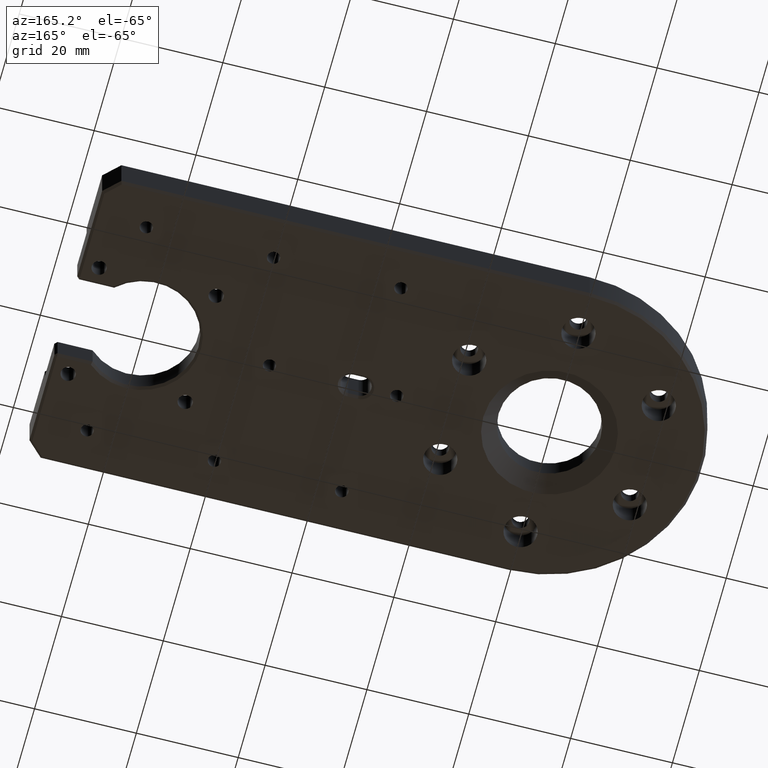
[diagram: clean part render]
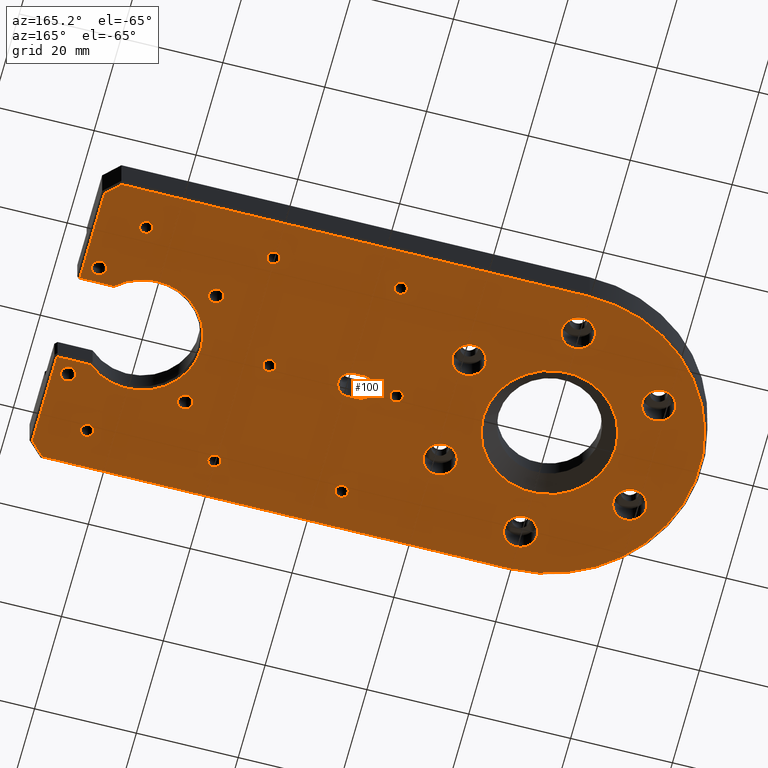
[diagram: same view with one face highlighted and labeled with its STEP entity id]
A machine part, auxiliary view. The second image highlights one B-rep face of the part: STEP entity #100.
In plain terms, the highlighted planar face has unit normal (0, 0, 1).
Its self-contained STEP definition (entity closure, byte-faithful):
#25 = DIRECTION ( 'NONE',  ( -1.000000000000000000, -2.168404344971052255E-16, 0.0000000000000000000 ) ) ;
#27 = CARTESIAN_POINT ( 'NONE',  ( 3.249999999999999556, 21.50000000000000355, -8.000000000000000000 ) ) ;
#43 = VERTEX_POINT ( 'NONE', #1870 ) ;
#48 = DIRECTION ( 'NONE',  ( -0.0000000000000000000, -0.0000000000000000000, -1.000000000000000000 ) ) ;
#74 = CARTESIAN_POINT ( 'NONE',  ( 91.50000000000000000, -11.50000000000000000, -8.000000000000000000 ) ) ;
#87 = AXIS2_PLACEMENT_3D ( 'NONE', #128, #3546, #3948 ) ;
#89 = CARTESIAN_POINT ( 'NONE',  ( 87.82000639385928764, 8.500000000000000000, -8.000000000000000000 ) ) ;
#100 = ADVANCED_FACE ( 'NONE', ( #2591, #3946, #1197, #3926, #2616, #1944, #529, #2265, #1917, #3628, #1894, #3239, #882, #2246, #3607, #550, #3991, #3282, #239, #3262, #4032 ), #970, .F. ) ;
#122 = AXIS2_PLACEMENT_3D ( 'NONE', #3997, #3589, #2952 ) ;
#125 = CARTESIAN_POINT ( 'NONE',  ( 38.99999999999998579, 3.673940397441985912E-16, -8.000000000000000000 ) ) ;
#126 = CARTESIAN_POINT ( 'NONE',  ( 68.50000000000000000, -11.50000000000000000, -8.000000000000000000 ) ) ;
#128 = CARTESIAN_POINT ( 'NONE',  ( 85.00000000000000000, -22.00000000000000000, -8.000000000000000000 ) ) ;
#130 = EDGE_LOOP ( 'NONE', ( #1636, #1069 ) ) ;
#131 = EDGE_CURVE ( 'NONE', #207, #2843, #2839, .T. ) ;
#137 = CIRCLE ( 'NONE', #2270, 1.449999999999993072 ) ;
#140 = DIRECTION ( 'NONE',  ( 1.000000000000000000, 0.0000000000000000000, 0.0000000000000000000 ) ) ;
#157 = CIRCLE ( 'NONE', #1353, 1.250000000000001110 ) ;
#169 = VERTEX_POINT ( 'NONE', #2705 ) ;
#177 = CARTESIAN_POINT ( 'NONE',  ( 85.00000000000000000, 22.00000000000000000, -8.000000000000000000 ) ) ;
#185 = EDGE_CURVE ( 'NONE', #3478, #2140, #2556, .T. ) ;
#187 = EDGE_LOOP ( 'NONE', ( #2347, #3830 ) ) ;
#190 = DIRECTION ( 'NONE',  ( 0.0000000000000000000, 0.0000000000000000000, 1.000000000000000000 ) ) ;
#191 = EDGE_CURVE ( 'NONE', #3411, #4268, #1638, .T. ) ;
#195 = ORIENTED_EDGE ( 'NONE', *, *, #3620, .T. ) ;
#204 = CARTESIAN_POINT ( 'NONE',  ( 28.75000000000000355, 0.0000000000000000000, -8.000000000000000000 ) ) ;
#207 = VERTEX_POINT ( 'NONE', #1306 ) ;
#210 = CIRCLE ( 'NONE', #2697, 3.249999999999999556 ) ;
#212 = CARTESIAN_POINT ( 'NONE',  ( -3.249999999999999556, 21.50000000000000355, -8.000000000000000000 ) ) ;
#224 = AXIS2_PLACEMENT_3D ( 'NONE', #3484, #2214, #140 ) ;
#227 = VERTEX_POINT ( 'NONE', #2939 ) ;
#238 = CIRCLE ( 'NONE', #87, 1.250000000000001110 ) ;
#239 = FACE_BOUND ( 'NONE', #3552, .T. ) ;
#257 = LINE ( 'NONE', #990, #2247 ) ;
#268 = DIRECTION ( 'NONE',  ( -0.0000000000000000000, -0.0000000000000000000, -1.000000000000000000 ) ) ;
#285 = CIRCLE ( 'NONE', #2482, 11.54999999999999005 ) ;
#286 = CIRCLE ( 'NONE', #2070, 1.250000000000001110 ) ;
#290 = DIRECTION ( 'NONE',  ( -1.000000000000000000, 0.0000000000000000000, 0.0000000000000000000 ) ) ;
#292 = CARTESIAN_POINT ( 'NONE',  ( 90.05000000000001137, 11.50000000000000000, -8.000000000000000000 ) ) ;
#313 = ORIENTED_EDGE ( 'NONE', *, *, #2367, .F. ) ;
#314 = CARTESIAN_POINT ( 'NONE',  ( 86.25000000000001421, 22.00000000000000000, -8.000000000000000000 ) ) ;
#326 = ORIENTED_EDGE ( 'NONE', *, *, #724, .F. ) ;
#328 = DIRECTION ( 'NONE',  ( 1.000000000000000000, 0.0000000000000000000, -0.0000000000000000000 ) ) ;
#345 = DIRECTION ( 'NONE',  ( 0.0000000000000000000, 0.0000000000000000000, 1.000000000000000000 ) ) ;
#350 = VERTEX_POINT ( 'NONE', #696 ) ;
#359 = ORIENTED_EDGE ( 'NONE', *, *, #4082, .F. ) ;
#364 = CARTESIAN_POINT ( 'NONE',  ( 35.00000000000000000, -21.99999999999999645, -8.000000000000000000 ) ) ;
#370 = CARTESIAN_POINT ( 'NONE',  ( 0.0000000000000000000, 21.50000000000000355, -8.000000000000000000 ) ) ;
#373 = EDGE_CURVE ( 'NONE', #556, #350, #286, .T. ) ;
#384 = CARTESIAN_POINT ( 'NONE',  ( 1.806354028742345802E-15, 29.50000000000000000, -8.000000000000000000 ) ) ;
#406 = DIRECTION ( 'NONE',  ( -0.0000000000000000000, -0.0000000000000000000, -1.000000000000000000 ) ) ;
#408 = EDGE_CURVE ( 'NONE', #1661, #1336, #2629, .T. ) ;
#420 = VERTEX_POINT ( 'NONE', #384 ) ;
#433 = EDGE_CURVE ( 'NONE', #3470, #1137, #3007, .T. ) ;
#434 = CARTESIAN_POINT ( 'NONE',  ( 83.75000000000000000, -22.00000000000000000, -8.000000000000000000 ) ) ;
#448 = CARTESIAN_POINT ( 'NONE',  ( 33.75000000000000000, -21.99999999999999645, -8.000000000000000000 ) ) ;
#449 = CIRCLE ( 'NONE', #1021, 1.250000000000001110 ) ;
#463 = EDGE_CURVE ( 'NONE', #4130, #2419, #1745, .T. ) ;
#466 = VECTOR ( 'NONE', #2607, 1000.000000000000114 ) ;
#470 = CIRCLE ( 'NONE', #4321, 1.250000000000001110 ) ;
#485 = ORIENTED_EDGE ( 'NONE', *, *, #647, .T. ) ;
#512 = EDGE_CURVE ( 'NONE', #2419, #4130, #2797, .T. ) ;
#517 = EDGE_CURVE ( 'NONE', #4348, #1369, #4247, .T. ) ;
#528 = CARTESIAN_POINT ( 'NONE',  ( 80.00000000000001421, 0.0000000000000000000, -8.000000000000000000 ) ) ;
#529 = FACE_BOUND ( 'NONE', #1828, .T. ) ;
#535 = CIRCLE ( 'NONE', #1241, 1.250000000000001110 ) ;
#550 = FACE_BOUND ( 'NONE', #2137, .T. ) ;
#556 = VERTEX_POINT ( 'NONE', #2149 ) ;
#569 = EDGE_CURVE ( 'NONE', #3647, #2410, #1476, .T. ) ;
#587 = VERTEX_POINT ( 'NONE', #4224 ) ;
#599 = VERTEX_POINT ( 'NONE', #448 ) ;
#603 = CARTESIAN_POINT ( 'NONE',  ( 94.50000000000004263, -26.99999999999996803, -8.000000000000000000 ) ) ;
#608 = AXIS2_PLACEMENT_3D ( 'NONE', #3070, #4063, #1294 ) ;
#612 = CIRCLE ( 'NONE', #3300, 1.250000000000001110 ) ;
#623 = VERTEX_POINT ( 'NONE', #2469 ) ;
#627 = EDGE_CURVE ( 'NONE', #4085, #3063, #4097, .T. ) ;
#634 = DIRECTION ( 'NONE',  ( -1.000000000000000000, 0.0000000000000000000, 0.0000000000000000000 ) ) ;
#640 = DIRECTION ( 'NONE',  ( -1.000000000000000000, 0.0000000000000000000, 0.0000000000000000000 ) ) ;
#641 = CARTESIAN_POINT ( 'NONE',  ( -21.86954618136542905, -10.75000000000001066, -8.000000000000000000 ) ) ;
#647 = EDGE_CURVE ( 'NONE', #849, #1062, #4388, .T. ) ;
#654 = CARTESIAN_POINT ( 'NONE',  ( 69.95000000000000284, 11.50000000000000000, -8.000000000000000000 ) ) ;
#663 = DIRECTION ( 'NONE',  ( 1.000000000000000000, 4.702740439383419307E-16, 0.0000000000000000000 ) ) ;
#664 = DIRECTION ( 'NONE',  ( 0.0000000000000000000, 0.0000000000000000000, 1.000000000000000000 ) ) ;
#674 = VERTEX_POINT ( 'NONE', #4339 ) ;
#684 = DIRECTION ( 'NONE',  ( -1.000000000000000000, 0.0000000000000000000, 0.0000000000000000000 ) ) ;
#688 = DIRECTION ( 'NONE',  ( -0.0000000000000000000, -0.0000000000000000000, -1.000000000000000000 ) ) ;
#696 = CARTESIAN_POINT ( 'NONE',  ( 53.75000000000000711, 0.0000000000000000000, -8.000000000000000000 ) ) ;
#708 = CIRCLE ( 'NONE', #4076, 1.250000000000001110 ) ;
#711 = AXIS2_PLACEMENT_3D ( 'NONE', #1018, #2376, #684 ) ;
#723 = DIRECTION ( 'NONE',  ( 1.000000000000000000, 0.0000000000000000000, 0.0000000000000000000 ) ) ;
#724 = EDGE_CURVE ( 'NONE', #2428, #2464, #2166, .T. ) ;
#727 = EDGE_LOOP ( 'NONE', ( #3244, #734 ) ) ;
#734 = ORIENTED_EDGE ( 'NONE', *, *, #2819, .T. ) ;
#735 = CARTESIAN_POINT ( 'NONE',  ( 86.25000000000001421, -22.00000000000000000, -8.000000000000000000 ) ) ;
#738 = EDGE_LOOP ( 'NONE', ( #326, #4167 ) ) ;
#745 = CIRCLE ( 'NONE', #3534, 3.249999999999999556 ) ;
#776 = EDGE_LOOP ( 'NONE', ( #4020, #1741 ) ) ;
#779 = AXIS2_PLACEMENT_3D ( 'NONE', #125, #2837, #3901 ) ;
#782 = CARTESIAN_POINT ( 'NONE',  ( -5.510910596163088767E-15, -29.50000000000000000, -8.000000000000000000 ) ) ;
#783 = EDGE_LOOP ( 'NONE', ( #3592, #1367 ) ) ;
#785 = DIRECTION ( 'NONE',  ( -0.0000000000000000000, -0.0000000000000000000, -1.000000000000000000 ) ) ;
#788 = LINE ( 'NONE', #3511, #466 ) ;
#792 = CIRCLE ( 'NONE', #3273, 2.500000000000015987 ) ;
#813 = AXIS2_PLACEMENT_3D ( 'NONE', #2296, #1926, #2275 ) ;
#818 = AXIS2_PLACEMENT_3D ( 'NONE', #1692, #1337, #2693 ) ;
#830 = CARTESIAN_POINT ( 'NONE',  ( 94.64644660940676602, 26.64644660940675180, -8.000000000000000000 ) ) ;
#837 = CIRCLE ( 'NONE', #2608, 3.249999999999999556 ) ;
#838 = ORIENTED_EDGE ( 'NONE', *, *, #2654, .F. ) ;
#841 = EDGE_CURVE ( 'NONE', #2410, #587, #2074, .T. ) ;
#849 = VERTEX_POINT ( 'NONE', #1441 ) ;
#879 = DIRECTION ( 'NONE',  ( -0.0000000000000000000, -0.0000000000000000000, -1.000000000000000000 ) ) ;
#882 = FACE_BOUND ( 'NONE', #4212, .T. ) ;
#884 = CARTESIAN_POINT ( 'NONE',  ( -15.36954618136542727, 10.75000000000000178, -8.000000000000000000 ) ) ;
#897 = EDGE_CURVE ( 'NONE', #623, #3337, #3080, .T. ) ;
#918 = CIRCLE ( 'NONE', #4205, 1.250000000000001110 ) ;
#927 = CARTESIAN_POINT ( 'NONE',  ( 3.997329373475927759E-15, -8.500000000000046185, -8.000000000000000000 ) ) ;
#970 = PLANE ( 'NONE',  #1567 ) ;
#979 = ORIENTED_EDGE ( 'NONE', *, *, #373, .F. ) ;
#984 = DIRECTION ( 'NONE',  ( -0.0000000000000000000, -0.0000000000000000000, -1.000000000000000000 ) ) ;
#990 = CARTESIAN_POINT ( 'NONE',  ( 92.00000000000005684, 29.50000000000000000, -8.000000000000000000 ) ) ;
#1018 = CARTESIAN_POINT ( 'NONE',  ( 85.00000000000000000, 22.00000000000000000, -8.000000000000000000 ) ) ;
#1021 = AXIS2_PLACEMENT_3D ( 'NONE', #3769, #1424, #2077 ) ;
#1029 = AXIS2_PLACEMENT_3D ( 'NONE', #2084, #2389, #3752 ) ;
#1030 = AXIS2_PLACEMENT_3D ( 'NONE', #2488, #1406, #2141 ) ;
#1034 = ORIENTED_EDGE ( 'NONE', *, *, #1115, .T. ) ;
#1048 = DIRECTION ( 'NONE',  ( 1.000000000000000000, 0.0000000000000000000, 0.0000000000000000000 ) ) ;
#1058 = EDGE_CURVE ( 'NONE', #2795, #2167, #3214, .T. ) ;
#1059 = CARTESIAN_POINT ( 'NONE',  ( 94.50000000000004263, -26.79289321881342190, -8.000000000000000000 ) ) ;
#1062 = VERTEX_POINT ( 'NONE', #2245 ) ;
#1066 = EDGE_CURVE ( 'NONE', #43, #2602, #285, .T. ) ;
#1069 = ORIENTED_EDGE ( 'NONE', *, *, #3512, .F. ) ;
#1074 = CARTESIAN_POINT ( 'NONE',  ( 55.00000000000000711, 0.0000000000000000000, -8.000000000000000000 ) ) ;
#1100 = DIRECTION ( 'NONE',  ( -0.0000000000000000000, -0.0000000000000000000, -1.000000000000000000 ) ) ;
#1103 = CARTESIAN_POINT ( 'NONE',  ( 68.50000000000000000, 11.50000000000000000, -8.000000000000000000 ) ) ;
#1104 = EDGE_CURVE ( 'NONE', #2167, #3470, #3489, .T. ) ;
#1115 = EDGE_CURVE ( 'NONE', #2602, #1724, #1941, .T. ) ;
#1137 = VERTEX_POINT ( 'NONE', #4398 ) ;
#1162 = DIRECTION ( 'NONE',  ( 0.0000000000000000000, 0.0000000000000000000, 1.000000000000000000 ) ) ;
#1181 = VERTEX_POINT ( 'NONE', #2615 ) ;
#1197 = FACE_BOUND ( 'NONE', #783, .T. ) ;
#1211 = EDGE_CURVE ( 'NONE', #227, #674, #1503, .T. ) ;
#1213 = CARTESIAN_POINT ( 'NONE',  ( 38.99999999999998579, 2.500000000000014655, -8.000000000000000000 ) ) ;
#1222 = DIRECTION ( 'NONE',  ( 0.0000000000000000000, -1.000000000000000000, 0.0000000000000000000 ) ) ;
#1241 = AXIS2_PLACEMENT_3D ( 'NONE', #3376, #3162, #4185 ) ;
#1245 = EDGE_CURVE ( 'NONE', #169, #3420, #2421, .T. ) ;
#1259 = ORIENTED_EDGE ( 'NONE', *, *, #1299, .F. ) ;
#1267 = CARTESIAN_POINT ( 'NONE',  ( 1.734723475976807094E-15, -21.50000000000000355, -8.000000000000000000 ) ) ;
#1272 = ORIENTED_EDGE ( 'NONE', *, *, #517, .T. ) ;
#1281 = DIRECTION ( 'NONE',  ( -0.0000000000000000000, -0.0000000000000000000, -1.000000000000000000 ) ) ;
#1291 = DIRECTION ( 'NONE',  ( -1.000000000000000000, 0.0000000000000000000, 0.0000000000000000000 ) ) ;
#1294 = DIRECTION ( 'NONE',  ( -1.000000000000000000, 0.0000000000000000000, 0.0000000000000000000 ) ) ;
#1299 = EDGE_CURVE ( 'NONE', #4268, #3411, #4055, .T. ) ;
#1302 = EDGE_CURVE ( 'NONE', #1062, #849, #137, .T. ) ;
#1306 = CARTESIAN_POINT ( 'NONE',  ( -3.249999999999997780, -21.50000000000000355, -8.000000000000000000 ) ) ;
#1336 = VERTEX_POINT ( 'NONE', #1348 ) ;
#1337 = DIRECTION ( 'NONE',  ( 0.0000000000000000000, 0.0000000000000000000, 1.000000000000000000 ) ) ;
#1341 = DIRECTION ( 'NONE',  ( -0.0000000000000000000, -0.0000000000000000000, 1.000000000000000000 ) ) ;
#1348 = CARTESIAN_POINT ( 'NONE',  ( 21.86954618136542905, 10.75000000000000000, -8.000000000000000000 ) ) ;
#1353 = AXIS2_PLACEMENT_3D ( 'NONE', #1910, #1281, #3619 ) ;
#1356 = EDGE_CURVE ( 'NONE', #1137, #2849, #2549, .T. ) ;
#1360 = DIRECTION ( 'NONE',  ( -0.0000000000000000000, -0.0000000000000000000, 1.000000000000000000 ) ) ;
#1367 = ORIENTED_EDGE ( 'NONE', *, *, #897, .T. ) ;
#1369 = VERTEX_POINT ( 'NONE', #4101 ) ;
#1387 = AXIS2_PLACEMENT_3D ( 'NONE', #2779, #3822, #2124 ) ;
#1388 = CIRCLE ( 'NONE', #608, 3.249999999999999556 ) ;
#1390 = DIRECTION ( 'NONE',  ( -1.000000000000000000, 0.0000000000000000000, 0.0000000000000000000 ) ) ;
#1397 = DIRECTION ( 'NONE',  ( -0.0000000000000000000, -0.0000000000000000000, -1.000000000000000000 ) ) ;
#1406 = DIRECTION ( 'NONE',  ( -0.0000000000000000000, -0.0000000000000000000, -1.000000000000000000 ) ) ;
#1407 = VERTEX_POINT ( 'NONE', #3917 ) ;
#1424 = DIRECTION ( 'NONE',  ( -0.0000000000000000000, -0.0000000000000000000, -1.000000000000000000 ) ) ;
#1441 = CARTESIAN_POINT ( 'NONE',  ( 92.94999999999998863, -11.50000000000000000, -8.000000000000000000 ) ) ;
#1453 = CARTESIAN_POINT ( 'NONE',  ( 37.00000000000002842, 0.0000000000000000000, -8.000000000000000000 ) ) ;
#1476 = LINE ( 'NONE', #830, #2940 ) ;
#1489 = DIRECTION ( 'NONE',  ( -0.0000000000000000000, -0.0000000000000000000, -1.000000000000000000 ) ) ;
#1498 = AXIS2_PLACEMENT_3D ( 'NONE', #1697, #48, #1390 ) ;
#1503 = CIRCLE ( 'NONE', #4211, 3.249999999999999556 ) ;
#1519 = EDGE_CURVE ( 'NONE', #1336, #1661, #3840, .T. ) ;
#1554 = ORIENTED_EDGE ( 'NONE', *, *, #2331, .T. ) ;
#1567 = AXIS2_PLACEMENT_3D ( 'NONE', #4416, #664, #328 ) ;
#1596 = VECTOR ( 'NONE', #3481, 1000.000000000000000 ) ;
#1600 = EDGE_CURVE ( 'NONE', #1671, #1407, #157, .T. ) ;
#1606 = CARTESIAN_POINT ( 'NONE',  ( 58.75000000000000711, -22.00000000000000000, -8.000000000000000000 ) ) ;
#1617 = VERTEX_POINT ( 'NONE', #212 ) ;
#1636 = ORIENTED_EDGE ( 'NONE', *, *, #1211, .F. ) ;
#1638 = CIRCLE ( 'NONE', #3410, 1.250000000000001110 ) ;
#1639 = VECTOR ( 'NONE', #2571, 1000.000000000000000 ) ;
#1642 = EDGE_LOOP ( 'NONE', ( #3502, #4314, #3929, #4018, #2982 ) ) ;
#1661 = VERTEX_POINT ( 'NONE', #4411 ) ;
#1669 = DIRECTION ( 'NONE',  ( -0.0000000000000000000, -0.0000000000000000000, -1.000000000000000000 ) ) ;
#1671 = VERTEX_POINT ( 'NONE', #3778 ) ;
#1677 = CARTESIAN_POINT ( 'NONE',  ( 91.50000000000000000, 11.50000000000000000, -8.000000000000000000 ) ) ;
#1683 = DIRECTION ( 'NONE',  ( -1.000000000000000000, 0.0000000000000000000, 0.0000000000000000000 ) ) ;
#1692 = CARTESIAN_POINT ( 'NONE',  ( 80.00000000000001421, 0.0000000000000000000, -8.000000000000000000 ) ) ;
#1697 = CARTESIAN_POINT ( 'NONE',  ( 18.61954618136542905, 10.75000000000000000, -8.000000000000000000 ) ) ;
#1702 = AXIS2_PLACEMENT_3D ( 'NONE', #1267, #3702, #3658 ) ;
#1708 = VERTEX_POINT ( 'NONE', #27 ) ;
#1714 = CARTESIAN_POINT ( 'NONE',  ( 68.50000000000000000, -11.50000000000000000, -8.000000000000000000 ) ) ;
#1717 = CARTESIAN_POINT ( 'NONE',  ( -15.36954618136543083, -10.75000000000001066, -8.000000000000000000 ) ) ;
#1719 = DIRECTION ( 'NONE',  ( -0.0000000000000000000, -0.0000000000000000000, -1.000000000000000000 ) ) ;
#1724 = VERTEX_POINT ( 'NONE', #2721 ) ;
#1726 = VECTOR ( 'NONE', #1222, 1000.000000000000000 ) ;
#1727 = DIRECTION ( 'NONE',  ( -0.0000000000000000000, -0.0000000000000000000, -1.000000000000000000 ) ) ;
#1739 = VECTOR ( 'NONE', #2378, 1000.000000000000000 ) ;
#1741 = ORIENTED_EDGE ( 'NONE', *, *, #1519, .F. ) ;
#1745 = CIRCLE ( 'NONE', #4241, 1.449999999999993072 ) ;
#1761 = EDGE_LOOP ( 'NONE', ( #195, #4317 ) ) ;
#1768 = DIRECTION ( 'NONE',  ( -1.000000000000000000, 0.0000000000000000000, 0.0000000000000000000 ) ) ;
#1796 = ORIENTED_EDGE ( 'NONE', *, *, #4050, .T. ) ;
#1797 = VERTEX_POINT ( 'NONE', #4206 ) ;
#1824 = CARTESIAN_POINT ( 'NONE',  ( 5.421010862427679942E-16, -2.500000000000022649, -8.000000000000000000 ) ) ;
#1825 = VERTEX_POINT ( 'NONE', #89 ) ;
#1828 = EDGE_LOOP ( 'NONE', ( #485, #3439 ) ) ;
#1863 = EDGE_CURVE ( 'NONE', #1369, #420, #2152, .T. ) ;
#1870 = CARTESIAN_POINT ( 'NONE',  ( 68.45000000000003126, 0.0000000000000000000, -8.000000000000000000 ) ) ;
#1872 = EDGE_CURVE ( 'NONE', #2849, #2795, #792, .T. ) ;
#1894 = FACE_BOUND ( 'NONE', #3314, .T. ) ;
#1903 = EDGE_CURVE ( 'NONE', #2464, #2428, #918, .T. ) ;
#1910 = CARTESIAN_POINT ( 'NONE',  ( 35.00000000000000000, 21.99999999999999645, -8.000000000000000000 ) ) ;
#1917 = FACE_BOUND ( 'NONE', #2672, .T. ) ;
#1926 = DIRECTION ( 'NONE',  ( -0.0000000000000000000, -0.0000000000000000000, -1.000000000000000000 ) ) ;
#1941 = LINE ( 'NONE', #927, #2282 ) ;
#1944 = FACE_BOUND ( 'NONE', #727, .T. ) ;
#1961 = EDGE_LOOP ( 'NONE', ( #3890, #1259 ) ) ;
#1969 = ORIENTED_EDGE ( 'NONE', *, *, #1600, .F. ) ;
#1971 = AXIS2_PLACEMENT_3D ( 'NONE', #3229, #190, #2278 ) ;
#1981 = CARTESIAN_POINT ( 'NONE',  ( 68.50000000000000000, 11.50000000000000000, -8.000000000000000000 ) ) ;
#1998 = VERTEX_POINT ( 'NONE', #3958 ) ;
#2007 = EDGE_LOOP ( 'NONE', ( #2562, #4094 ) ) ;
#2021 = CIRCLE ( 'NONE', #2372, 1.449999999999993072 ) ;
#2034 = CIRCLE ( 'NONE', #2873, 3.249999999999999556 ) ;
#2049 = CARTESIAN_POINT ( 'NONE',  ( 60.00000000000000711, -22.00000000000000000, -8.000000000000000000 ) ) ;
#2058 = VERTEX_POINT ( 'NONE', #735 ) ;
#2070 = AXIS2_PLACEMENT_3D ( 'NONE', #1074, #984, #3390 ) ;
#2074 = LINE ( 'NONE', #3496, #1739 ) ;
#2077 = DIRECTION ( 'NONE',  ( -1.000000000000000000, 0.0000000000000000000, 0.0000000000000000000 ) ) ;
#2084 = CARTESIAN_POINT ( 'NONE',  ( 91.50000000000000000, 11.50000000000000000, -8.000000000000000000 ) ) ;
#2095 = ORIENTED_EDGE ( 'NONE', *, *, #1066, .T. ) ;
#2098 = ORIENTED_EDGE ( 'NONE', *, *, #2154, .F. ) ;
#2102 = CIRCLE ( 'NONE', #1030, 1.250000000000001110 ) ;
#2105 = VERTEX_POINT ( 'NONE', #654 ) ;
#2106 = CARTESIAN_POINT ( 'NONE',  ( -18.61954618136542905, -10.75000000000001066, -8.000000000000000000 ) ) ;
#2124 = DIRECTION ( 'NONE',  ( 1.000000000000000000, 0.0000000000000000000, 0.0000000000000000000 ) ) ;
#2129 = DIRECTION ( 'NONE',  ( -0.0000000000000000000, -0.0000000000000000000, -1.000000000000000000 ) ) ;
#2132 = AXIS2_PLACEMENT_3D ( 'NONE', #126, #2239, #2918 ) ;
#2137 = EDGE_LOOP ( 'NONE', ( #2164, #3475 ) ) ;
#2140 = VERTEX_POINT ( 'NONE', #314 ) ;
#2141 = DIRECTION ( 'NONE',  ( -1.000000000000000000, 0.0000000000000000000, 0.0000000000000000000 ) ) ;
#2149 = CARTESIAN_POINT ( 'NONE',  ( 56.25000000000000711, 1.530808498934193050E-16, -8.000000000000000000 ) ) ;
#2152 = CIRCLE ( 'NONE', #224, 29.50000000000000000 ) ;
#2154 = EDGE_CURVE ( 'NONE', #1797, #599, #708, .T. ) ;
#2164 = ORIENTED_EDGE ( 'NONE', *, *, #131, .F. ) ;
#2166 = CIRCLE ( 'NONE', #813, 1.250000000000001110 ) ;
#2167 = VERTEX_POINT ( 'NONE', #3155 ) ;
#2173 = AXIS2_PLACEMENT_3D ( 'NONE', #2106, #406, #1768 ) ;
#2177 = AXIS2_PLACEMENT_3D ( 'NONE', #1103, #2456, #4077 ) ;
#2214 = DIRECTION ( 'NONE',  ( -0.0000000000000000000, -0.0000000000000000000, -1.000000000000000000 ) ) ;
#2239 = DIRECTION ( 'NONE',  ( -0.0000000000000000000, -0.0000000000000000000, 1.000000000000000000 ) ) ;
#2245 = CARTESIAN_POINT ( 'NONE',  ( 90.05000000000001137, -11.50000000000000000, -8.000000000000000000 ) ) ;
#2246 = FACE_BOUND ( 'NONE', #1961, .T. ) ;
#2247 = VECTOR ( 'NONE', #4325, 1000.000000000000000 ) ;
#2265 = FACE_BOUND ( 'NONE', #738, .T. ) ;
#2270 = AXIS2_PLACEMENT_3D ( 'NONE', #74, #3738, #2744 ) ;
#2275 = DIRECTION ( 'NONE',  ( -1.000000000000000000, 0.0000000000000000000, 0.0000000000000000000 ) ) ;
#2278 = DIRECTION ( 'NONE',  ( 1.000000000000000000, 0.0000000000000000000, 0.0000000000000000000 ) ) ;
#2282 = VECTOR ( 'NONE', #663, 1000.000000000000000 ) ;
#2296 = CARTESIAN_POINT ( 'NONE',  ( 30.00000000000000711, 0.0000000000000000000, -8.000000000000000000 ) ) ;
#2301 = DIRECTION ( 'NONE',  ( -0.0000000000000000000, -0.0000000000000000000, -1.000000000000000000 ) ) ;
#2302 = AXIS2_PLACEMENT_3D ( 'NONE', #3421, #3064, #3743 ) ;
#2310 = ORIENTED_EDGE ( 'NONE', *, *, #1245, .F. ) ;
#2331 = EDGE_CURVE ( 'NONE', #1724, #3808, #4017, .T. ) ;
#2334 = CARTESIAN_POINT ( 'NONE',  ( 31.25000000000000711, 1.530808498934193050E-16, -8.000000000000000000 ) ) ;
#2338 = CARTESIAN_POINT ( 'NONE',  ( 61.25000000000000711, 22.00000000000000000, -8.000000000000000000 ) ) ;
#2347 = ORIENTED_EDGE ( 'NONE', *, *, #512, .T. ) ;
#2367 = EDGE_CURVE ( 'NONE', #1407, #1671, #3905, .T. ) ;
#2372 = AXIS2_PLACEMENT_3D ( 'NONE', #1714, #1360, #1048 ) ;
#2376 = DIRECTION ( 'NONE',  ( -0.0000000000000000000, -0.0000000000000000000, -1.000000000000000000 ) ) ;
#2378 = DIRECTION ( 'NONE',  ( 0.0000000000000000000, -1.000000000000000000, 0.0000000000000000000 ) ) ;
#2389 = DIRECTION ( 'NONE',  ( -0.0000000000000000000, -0.0000000000000000000, 1.000000000000000000 ) ) ;
#2395 = DIRECTION ( 'NONE',  ( -1.000000000000000000, 0.0000000000000000000, 0.0000000000000000000 ) ) ;
#2397 = ORIENTED_EDGE ( 'NONE', *, *, #3980, .F. ) ;
#2401 = CARTESIAN_POINT ( 'NONE',  ( 34.50000000000000711, 0.0000000000000000000, -8.000000000000000000 ) ) ;
#2405 = DIRECTION ( 'NONE',  ( -1.000000000000000000, 0.0000000000000000000, 0.0000000000000000000 ) ) ;
#2410 = VERTEX_POINT ( 'NONE', #3634 ) ;
#2419 = VERTEX_POINT ( 'NONE', #3243 ) ;
#2421 = CIRCLE ( 'NONE', #3492, 1.250000000000001110 ) ;
#2428 = VERTEX_POINT ( 'NONE', #204 ) ;
#2446 = CIRCLE ( 'NONE', #2177, 1.449999999999993072 ) ;
#2456 = DIRECTION ( 'NONE',  ( -0.0000000000000000000, -0.0000000000000000000, 1.000000000000000000 ) ) ;
#2459 = EDGE_CURVE ( 'NONE', #3004, #2858, #837, .T. ) ;
#2464 = VERTEX_POINT ( 'NONE', #2334 ) ;
#2469 = CARTESIAN_POINT ( 'NONE',  ( 12.99999999999998401, 1.592040838891557123E-15, -8.000000000000000000 ) ) ;
#2473 = CARTESIAN_POINT ( 'NONE',  ( -18.61954618136542550, 10.75000000000000178, -8.000000000000000000 ) ) ;
#2482 = AXIS2_PLACEMENT_3D ( 'NONE', #528, #3544, #4190 ) ;
#2488 = CARTESIAN_POINT ( 'NONE',  ( 85.00000000000000000, -22.00000000000000000, -8.000000000000000000 ) ) ;
#2542 = EDGE_CURVE ( 'NONE', #587, #1825, #3333, .T. ) ;
#2549 = CIRCLE ( 'NONE', #3988, 2.500000000000015987 ) ;
#2556 = CIRCLE ( 'NONE', #711, 1.250000000000001110 ) ;
#2562 = ORIENTED_EDGE ( 'NONE', *, *, #2905, .F. ) ;
#2568 = ORIENTED_EDGE ( 'NONE', *, *, #3427, .F. ) ;
#2571 = DIRECTION ( 'NONE',  ( 1.000000000000000000, 2.168404344971052255E-16, 0.0000000000000000000 ) ) ;
#2590 = CARTESIAN_POINT ( 'NONE',  ( 18.61954618136543615, -10.75000000000000000, -8.000000000000000000 ) ) ;
#2591 = FACE_BOUND ( 'NONE', #1642, .T. ) ;
#2599 = EDGE_CURVE ( 'NONE', #1998, #3105, #4058, .T. ) ;
#2602 = VERTEX_POINT ( 'NONE', #3810 ) ;
#2607 = DIRECTION ( 'NONE',  ( -0.7071067811865441310, -0.7071067811865507924, 0.0000000000000000000 ) ) ;
#2608 = AXIS2_PLACEMENT_3D ( 'NONE', #2668, #688, #3086 ) ;
#2611 = ORIENTED_EDGE ( 'NONE', *, *, #841, .T. ) ;
#2615 = CARTESIAN_POINT ( 'NONE',  ( 67.05000000000001137, 11.50000000000000000, -8.000000000000000000 ) ) ;
#2616 = FACE_BOUND ( 'NONE', #1761, .T. ) ;
#2629 = CIRCLE ( 'NONE', #1498, 3.249999999999999556 ) ;
#2635 = EDGE_CURVE ( 'NONE', #2843, #207, #3627, .T. ) ;
#2654 = EDGE_CURVE ( 'NONE', #3063, #4085, #210, .T. ) ;
#2668 = CARTESIAN_POINT ( 'NONE',  ( -18.61954618136542550, 10.75000000000000178, -8.000000000000000000 ) ) ;
#2672 = EDGE_LOOP ( 'NONE', ( #2978, #979 ) ) ;
#2683 = CARTESIAN_POINT ( 'NONE',  ( 1.734723475976807094E-15, -21.50000000000000355, -8.000000000000000000 ) ) ;
#2693 = DIRECTION ( 'NONE',  ( 1.000000000000000000, 0.0000000000000000000, 0.0000000000000000000 ) ) ;
#2697 = AXIS2_PLACEMENT_3D ( 'NONE', #3311, #1669, #1291 ) ;
#2699 = DIRECTION ( 'NONE',  ( 1.000000000000000000, 0.0000000000000000000, 0.0000000000000000000 ) ) ;
#2705 = CARTESIAN_POINT ( 'NONE',  ( 58.75000000000000711, 22.00000000000000000, -8.000000000000000000 ) ) ;
#2711 = CARTESIAN_POINT ( 'NONE',  ( 3.250000000000001332, -21.50000000000000355, -8.000000000000000000 ) ) ;
#2721 = CARTESIAN_POINT ( 'NONE',  ( 94.50000000000004263, -8.500000000000000000, -8.000000000000000000 ) ) ;
#2732 = ORIENTED_EDGE ( 'NONE', *, *, #3331, .T. ) ;
#2744 = DIRECTION ( 'NONE',  ( 1.000000000000000000, 0.0000000000000000000, 0.0000000000000000000 ) ) ;
#2753 = CARTESIAN_POINT ( 'NONE',  ( 61.25000000000000711, -22.00000000000000000, -8.000000000000000000 ) ) ;
#2779 = CARTESIAN_POINT ( 'NONE',  ( 91.50000000000000000, -11.50000000000000000, -8.000000000000000000 ) ) ;
#2795 = VERTEX_POINT ( 'NONE', #4109 ) ;
#2797 = CIRCLE ( 'NONE', #1029, 1.449999999999993072 ) ;
#2804 = ORIENTED_EDGE ( 'NONE', *, *, #3803, .F. ) ;
#2805 = CARTESIAN_POINT ( 'NONE',  ( 30.00000000000000711, 0.0000000000000000000, -8.000000000000000000 ) ) ;
#2819 = EDGE_CURVE ( 'NONE', #3105, #1998, #2021, .T. ) ;
#2821 = EDGE_LOOP ( 'NONE', ( #2732, #1272, #3400, #2899, #3081, #2611, #3775, #1796, #2095, #1034, #1554 ) ) ;
#2834 = DIRECTION ( 'NONE',  ( -1.000000000000000000, 0.0000000000000000000, 0.0000000000000000000 ) ) ;
#2837 = DIRECTION ( 'NONE',  ( 0.0000000000000000000, 0.0000000000000000000, 1.000000000000000000 ) ) ;
#2839 = CIRCLE ( 'NONE', #3850, 3.249999999999999556 ) ;
#2843 = VERTEX_POINT ( 'NONE', #2711 ) ;
#2849 = VERTEX_POINT ( 'NONE', #2401 ) ;
#2850 = EDGE_CURVE ( 'NONE', #599, #1797, #449, .T. ) ;
#2858 = VERTEX_POINT ( 'NONE', #4151 ) ;
#2873 = AXIS2_PLACEMENT_3D ( 'NONE', #4189, #879, #2834 ) ;
#2899 = ORIENTED_EDGE ( 'NONE', *, *, #3652, .T. ) ;
#2905 = EDGE_CURVE ( 'NONE', #3898, #2058, #238, .T. ) ;
#2913 = EDGE_LOOP ( 'NONE', ( #2946, #3674 ) ) ;
#2918 = DIRECTION ( 'NONE',  ( 1.000000000000000000, 0.0000000000000000000, 0.0000000000000000000 ) ) ;
#2930 = EDGE_CURVE ( 'NONE', #2140, #3478, #470, .T. ) ;
#2939 = CARTESIAN_POINT ( 'NONE',  ( 15.36954618136543793, -10.75000000000000000, -8.000000000000000000 ) ) ;
#2940 = VECTOR ( 'NONE', #3459, 1000.000000000000000 ) ;
#2946 = ORIENTED_EDGE ( 'NONE', *, *, #185, .F. ) ;
#2952 = DIRECTION ( 'NONE',  ( -1.000000000000000000, 0.0000000000000000000, 0.0000000000000000000 ) ) ;
#2978 = ORIENTED_EDGE ( 'NONE', *, *, #3303, .F. ) ;
#2982 = ORIENTED_EDGE ( 'NONE', *, *, #433, .T. ) ;
#3004 = VERTEX_POINT ( 'NONE', #884 ) ;
#3007 = LINE ( 'NONE', #4390, #4359 ) ;
#3026 = ORIENTED_EDGE ( 'NONE', *, *, #627, .F. ) ;
#3061 = DIRECTION ( 'NONE',  ( -0.0000000000000000000, -0.0000000000000000000, -1.000000000000000000 ) ) ;
#3063 = VERTEX_POINT ( 'NONE', #641 ) ;
#3064 = DIRECTION ( 'NONE',  ( 0.0000000000000000000, 0.0000000000000000000, 1.000000000000000000 ) ) ;
#3070 = CARTESIAN_POINT ( 'NONE',  ( 0.0000000000000000000, 21.50000000000000355, -8.000000000000000000 ) ) ;
#3078 = DIRECTION ( 'NONE',  ( -1.000000000000000000, 0.0000000000000000000, 0.0000000000000000000 ) ) ;
#3080 = CIRCLE ( 'NONE', #2302, 12.99999999999998401 ) ;
#3081 = ORIENTED_EDGE ( 'NONE', *, *, #569, .T. ) ;
#3086 = DIRECTION ( 'NONE',  ( -1.000000000000000000, 0.0000000000000000000, 0.0000000000000000000 ) ) ;
#3103 = CARTESIAN_POINT ( 'NONE',  ( 60.00000000000000711, 22.00000000000000000, -8.000000000000000000 ) ) ;
#3105 = VERTEX_POINT ( 'NONE', #4355 ) ;
#3107 = EDGE_LOOP ( 'NONE', ( #838, #3026 ) ) ;
#3122 = CARTESIAN_POINT ( 'NONE',  ( 60.00000000000000711, -22.00000000000000000, -8.000000000000000000 ) ) ;
#3154 = CIRCLE ( 'NONE', #818, 11.54999999999999005 ) ;
#3155 = CARTESIAN_POINT ( 'NONE',  ( 38.99999999999998579, -2.500000000000013767, -8.000000000000000000 ) ) ;
#3162 = DIRECTION ( 'NONE',  ( -0.0000000000000000000, -0.0000000000000000000, -1.000000000000000000 ) ) ;
#3182 = DIRECTION ( 'NONE',  ( -1.000000000000000000, 0.0000000000000000000, 0.0000000000000000000 ) ) ;
#3214 = LINE ( 'NONE', #1824, #1639 ) ;
#3229 = CARTESIAN_POINT ( 'NONE',  ( 0.0000000000000000000, 0.0000000000000000000, -8.000000000000000000 ) ) ;
#3239 = FACE_BOUND ( 'NONE', #4248, .T. ) ;
#3241 = CARTESIAN_POINT ( 'NONE',  ( 91.79289321881348940, -29.49999999999999645, -8.000000000000000000 ) ) ;
#3243 = CARTESIAN_POINT ( 'NONE',  ( 92.94999999999998863, 11.50000000000000000, -8.000000000000000000 ) ) ;
#3244 = ORIENTED_EDGE ( 'NONE', *, *, #2599, .T. ) ;
#3262 = FACE_BOUND ( 'NONE', #3639, .T. ) ;
#3273 = AXIS2_PLACEMENT_3D ( 'NONE', #1453, #1162, #3577 ) ;
#3276 = DIRECTION ( 'NONE',  ( -0.0000000000000000000, -0.0000000000000000000, 1.000000000000000000 ) ) ;
#3282 = FACE_BOUND ( 'NONE', #776, .T. ) ;
#3299 = CARTESIAN_POINT ( 'NONE',  ( 91.79289321881350361, 29.50000000000000000, -8.000000000000000000 ) ) ;
#3300 = AXIS2_PLACEMENT_3D ( 'NONE', #4362, #268, #290 ) ;
#3303 = EDGE_CURVE ( 'NONE', #350, #556, #535, .T. ) ;
#3311 = CARTESIAN_POINT ( 'NONE',  ( -18.61954618136542905, -10.75000000000001066, -8.000000000000000000 ) ) ;
#3314 = EDGE_LOOP ( 'NONE', ( #2310, #2568 ) ) ;
#3331 = EDGE_CURVE ( 'NONE', #3808, #4348, #788, .T. ) ;
#3333 = LINE ( 'NONE', #3356, #4067 ) ;
#3337 = VERTEX_POINT ( 'NONE', #3981 ) ;
#3341 = EDGE_CURVE ( 'NONE', #3337, #623, #4245, .T. ) ;
#3356 = CARTESIAN_POINT ( 'NONE',  ( 0.0000000000000000000, 8.500000000000000000, -8.000000000000000000 ) ) ;
#3376 = CARTESIAN_POINT ( 'NONE',  ( 55.00000000000000711, 0.0000000000000000000, -8.000000000000000000 ) ) ;
#3390 = DIRECTION ( 'NONE',  ( -1.000000000000000000, 0.0000000000000000000, 0.0000000000000000000 ) ) ;
#3400 = ORIENTED_EDGE ( 'NONE', *, *, #1863, .T. ) ;
#3410 = AXIS2_PLACEMENT_3D ( 'NONE', #2049, #3061, #640 ) ;
#3411 = VERTEX_POINT ( 'NONE', #1606 ) ;
#3420 = VERTEX_POINT ( 'NONE', #2338 ) ;
#3421 = CARTESIAN_POINT ( 'NONE',  ( 0.0000000000000000000, 0.0000000000000000000, -8.000000000000000000 ) ) ;
#3427 = EDGE_CURVE ( 'NONE', #3420, #169, #612, .T. ) ;
#3439 = ORIENTED_EDGE ( 'NONE', *, *, #1302, .T. ) ;
#3448 = EDGE_CURVE ( 'NONE', #1181, #2105, #2446, .T. ) ;
#3459 = DIRECTION ( 'NONE',  ( 0.7071067811865491270, -0.7071067811865459074, 0.0000000000000000000 ) ) ;
#3464 = DIRECTION ( 'NONE',  ( -1.000000000000000000, 0.0000000000000000000, 0.0000000000000000000 ) ) ;
#3470 = VERTEX_POINT ( 'NONE', #1213 ) ;
#3475 = ORIENTED_EDGE ( 'NONE', *, *, #2635, .F. ) ;
#3478 = VERTEX_POINT ( 'NONE', #3518 ) ;
#3479 = AXIS2_PLACEMENT_3D ( 'NONE', #3122, #1397, #1683 ) ;
#3481 = DIRECTION ( 'NONE',  ( -1.000000000000000000, 0.0000000000000000000, 0.0000000000000000000 ) ) ;
#3484 = CARTESIAN_POINT ( 'NONE',  ( 0.0000000000000000000, 0.0000000000000000000, -8.000000000000000000 ) ) ;
#3487 = DIRECTION ( 'NONE',  ( -1.000000000000000000, 0.0000000000000000000, 0.0000000000000000000 ) ) ;
#3489 = CIRCLE ( 'NONE', #779, 2.500000000000015987 ) ;
#3492 = AXIS2_PLACEMENT_3D ( 'NONE', #3103, #1100, #3464 ) ;
#3496 = CARTESIAN_POINT ( 'NONE',  ( 94.50000000000004263, 8.000000000000000000, -8.000000000000000000 ) ) ;
#3502 = ORIENTED_EDGE ( 'NONE', *, *, #1356, .T. ) ;
#3511 = CARTESIAN_POINT ( 'NONE',  ( 91.64644660940676602, -29.64644660940672338, -8.000000000000000000 ) ) ;
#3512 = EDGE_CURVE ( 'NONE', #674, #227, #2034, .T. ) ;
#3518 = CARTESIAN_POINT ( 'NONE',  ( 83.75000000000000000, 22.00000000000000000, -8.000000000000000000 ) ) ;
#3534 = AXIS2_PLACEMENT_3D ( 'NONE', #370, #1727, #3078 ) ;
#3544 = DIRECTION ( 'NONE',  ( 0.0000000000000000000, 0.0000000000000000000, 1.000000000000000000 ) ) ;
#3546 = DIRECTION ( 'NONE',  ( -0.0000000000000000000, -0.0000000000000000000, -1.000000000000000000 ) ) ;
#3552 = EDGE_LOOP ( 'NONE', ( #359, #2804 ) ) ;
#3556 = AXIS2_PLACEMENT_3D ( 'NONE', #3963, #2301, #634 ) ;
#3577 = DIRECTION ( 'NONE',  ( 1.000000000000000000, 0.0000000000000000000, 0.0000000000000000000 ) ) ;
#3589 = DIRECTION ( 'NONE',  ( -0.0000000000000000000, -0.0000000000000000000, -1.000000000000000000 ) ) ;
#3592 = ORIENTED_EDGE ( 'NONE', *, *, #3341, .T. ) ;
#3607 = FACE_BOUND ( 'NONE', #2007, .T. ) ;
#3619 = DIRECTION ( 'NONE',  ( -1.000000000000000000, 0.0000000000000000000, 0.0000000000000000000 ) ) ;
#3620 = EDGE_CURVE ( 'NONE', #2105, #1181, #4107, .T. ) ;
#3627 = CIRCLE ( 'NONE', #1702, 3.249999999999999556 ) ;
#3628 = FACE_BOUND ( 'NONE', #2913, .T. ) ;
#3634 = CARTESIAN_POINT ( 'NONE',  ( 94.50000000000004263, 26.79289321881347874, -8.000000000000000000 ) ) ;
#3639 = EDGE_LOOP ( 'NONE', ( #2397, #3855 ) ) ;
#3647 = VERTEX_POINT ( 'NONE', #3299 ) ;
#3652 = EDGE_CURVE ( 'NONE', #420, #3647, #257, .T. ) ;
#3658 = DIRECTION ( 'NONE',  ( -1.000000000000000000, 0.0000000000000000000, 0.0000000000000000000 ) ) ;
#3674 = ORIENTED_EDGE ( 'NONE', *, *, #2930, .F. ) ;
#3702 = DIRECTION ( 'NONE',  ( -0.0000000000000000000, -0.0000000000000000000, -1.000000000000000000 ) ) ;
#3738 = DIRECTION ( 'NONE',  ( -0.0000000000000000000, -0.0000000000000000000, 1.000000000000000000 ) ) ;
#3743 = DIRECTION ( 'NONE',  ( 1.000000000000000000, 0.0000000000000000000, 0.0000000000000000000 ) ) ;
#3752 = DIRECTION ( 'NONE',  ( 1.000000000000000000, 0.0000000000000000000, 0.0000000000000000000 ) ) ;
#3769 = CARTESIAN_POINT ( 'NONE',  ( 35.00000000000000000, -21.99999999999999645, -8.000000000000000000 ) ) ;
#3775 = ORIENTED_EDGE ( 'NONE', *, *, #2542, .T. ) ;
#3778 = CARTESIAN_POINT ( 'NONE',  ( 33.75000000000000000, 21.99999999999999645, -8.000000000000000000 ) ) ;
#3783 = CARTESIAN_POINT ( 'NONE',  ( 37.00000000000002842, 0.0000000000000000000, -8.000000000000000000 ) ) ;
#3803 = EDGE_CURVE ( 'NONE', #1708, #1617, #745, .T. ) ;
#3808 = VERTEX_POINT ( 'NONE', #1059 ) ;
#3810 = CARTESIAN_POINT ( 'NONE',  ( 87.82000639385928764, -8.500000000000000000, -8.000000000000000000 ) ) ;
#3820 = AXIS2_PLACEMENT_3D ( 'NONE', #2473, #2129, #3487 ) ;
#3822 = DIRECTION ( 'NONE',  ( -0.0000000000000000000, -0.0000000000000000000, 1.000000000000000000 ) ) ;
#3830 = ORIENTED_EDGE ( 'NONE', *, *, #463, .T. ) ;
#3840 = CIRCLE ( 'NONE', #3556, 3.249999999999999556 ) ;
#3850 = AXIS2_PLACEMENT_3D ( 'NONE', #2683, #4051, #2395 ) ;
#3855 = ORIENTED_EDGE ( 'NONE', *, *, #2459, .F. ) ;
#3890 = ORIENTED_EDGE ( 'NONE', *, *, #191, .F. ) ;
#3898 = VERTEX_POINT ( 'NONE', #434 ) ;
#3901 = DIRECTION ( 'NONE',  ( 1.000000000000000000, 0.0000000000000000000, 0.0000000000000000000 ) ) ;
#3905 = CIRCLE ( 'NONE', #122, 1.250000000000001110 ) ;
#3917 = CARTESIAN_POINT ( 'NONE',  ( 36.25000000000000711, 21.99999999999999645, -8.000000000000000000 ) ) ;
#3926 = FACE_BOUND ( 'NONE', #187, .T. ) ;
#3929 = ORIENTED_EDGE ( 'NONE', *, *, #1058, .T. ) ;
#3946 = FACE_OUTER_BOUND ( 'NONE', #2821, .T. ) ;
#3948 = DIRECTION ( 'NONE',  ( -1.000000000000000000, 0.0000000000000000000, 0.0000000000000000000 ) ) ;
#3958 = CARTESIAN_POINT ( 'NONE',  ( 69.95000000000000284, -11.50000000000000000, -8.000000000000000000 ) ) ;
#3963 = CARTESIAN_POINT ( 'NONE',  ( 18.61954618136542905, 10.75000000000000000, -8.000000000000000000 ) ) ;
#3968 = DIRECTION ( 'NONE',  ( -1.000000000000000000, 0.0000000000000000000, 0.0000000000000000000 ) ) ;
#3980 = EDGE_CURVE ( 'NONE', #2858, #3004, #4033, .T. ) ;
#3981 = CARTESIAN_POINT ( 'NONE',  ( -12.99999999999998401, 0.0000000000000000000, -8.000000000000000000 ) ) ;
#3986 = DIRECTION ( 'NONE',  ( 1.000000000000000000, 0.0000000000000000000, 0.0000000000000000000 ) ) ;
#3988 = AXIS2_PLACEMENT_3D ( 'NONE', #3783, #345, #723 ) ;
#3991 = FACE_BOUND ( 'NONE', #130, .T. ) ;
#3997 = CARTESIAN_POINT ( 'NONE',  ( 35.00000000000000000, 21.99999999999999645, -8.000000000000000000 ) ) ;
#4013 = DIRECTION ( 'NONE',  ( -0.0000000000000000000, -0.0000000000000000000, -1.000000000000000000 ) ) ;
#4017 = LINE ( 'NONE', #603, #1726 ) ;
#4018 = ORIENTED_EDGE ( 'NONE', *, *, #1104, .T. ) ;
#4020 = ORIENTED_EDGE ( 'NONE', *, *, #408, .F. ) ;
#4032 = FACE_BOUND ( 'NONE', #3107, .T. ) ;
#4033 = CIRCLE ( 'NONE', #3820, 3.249999999999999556 ) ;
#4050 = EDGE_CURVE ( 'NONE', #1825, #43, #3154, .T. ) ;
#4051 = DIRECTION ( 'NONE',  ( -0.0000000000000000000, -0.0000000000000000000, -1.000000000000000000 ) ) ;
#4055 = CIRCLE ( 'NONE', #3479, 1.250000000000001110 ) ;
#4058 = CIRCLE ( 'NONE', #2132, 1.449999999999993072 ) ;
#4063 = DIRECTION ( 'NONE',  ( -0.0000000000000000000, -0.0000000000000000000, -1.000000000000000000 ) ) ;
#4067 = VECTOR ( 'NONE', #4081, 1000.000000000000000 ) ;
#4076 = AXIS2_PLACEMENT_3D ( 'NONE', #364, #1719, #2405 ) ;
#4077 = DIRECTION ( 'NONE',  ( 1.000000000000000000, 0.0000000000000000000, 0.0000000000000000000 ) ) ;
#4081 = DIRECTION ( 'NONE',  ( -1.000000000000000000, 0.0000000000000000000, 0.0000000000000000000 ) ) ;
#4082 = EDGE_CURVE ( 'NONE', #1617, #1708, #1388, .T. ) ;
#4085 = VERTEX_POINT ( 'NONE', #1717 ) ;
#4094 = ORIENTED_EDGE ( 'NONE', *, *, #4196, .F. ) ;
#4097 = CIRCLE ( 'NONE', #2173, 3.249999999999999556 ) ;
#4101 = CARTESIAN_POINT ( 'NONE',  ( -5.510910596163088767E-15, -29.50000000000000000, -8.000000000000000000 ) ) ;
#4107 = CIRCLE ( 'NONE', #4178, 1.449999999999993072 ) ;
#4109 = CARTESIAN_POINT ( 'NONE',  ( 37.00000000000002842, -2.500000000000014211, -8.000000000000000000 ) ) ;
#4130 = VERTEX_POINT ( 'NONE', #292 ) ;
#4151 = CARTESIAN_POINT ( 'NONE',  ( -21.86954618136542550, 10.75000000000000178, -8.000000000000000000 ) ) ;
#4167 = ORIENTED_EDGE ( 'NONE', *, *, #1903, .F. ) ;
#4178 = AXIS2_PLACEMENT_3D ( 'NONE', #1981, #3276, #3986 ) ;
#4185 = DIRECTION ( 'NONE',  ( -1.000000000000000000, 0.0000000000000000000, 0.0000000000000000000 ) ) ;
#4189 = CARTESIAN_POINT ( 'NONE',  ( 18.61954618136543615, -10.75000000000000000, -8.000000000000000000 ) ) ;
#4190 = DIRECTION ( 'NONE',  ( 1.000000000000000000, 0.0000000000000000000, 0.0000000000000000000 ) ) ;
#4196 = EDGE_CURVE ( 'NONE', #2058, #3898, #2102, .T. ) ;
#4205 = AXIS2_PLACEMENT_3D ( 'NONE', #2805, #785, #3182 ) ;
#4206 = CARTESIAN_POINT ( 'NONE',  ( 36.25000000000000711, -21.99999999999999645, -8.000000000000000000 ) ) ;
#4211 = AXIS2_PLACEMENT_3D ( 'NONE', #2590, #4013, #3968 ) ;
#4212 = EDGE_LOOP ( 'NONE', ( #4371, #2098 ) ) ;
#4224 = CARTESIAN_POINT ( 'NONE',  ( 94.50000000000004263, 8.500000000000000000, -8.000000000000000000 ) ) ;
#4241 = AXIS2_PLACEMENT_3D ( 'NONE', #1677, #1341, #2699 ) ;
#4245 = CIRCLE ( 'NONE', #1971, 12.99999999999998401 ) ;
#4247 = LINE ( 'NONE', #782, #1596 ) ;
#4248 = EDGE_LOOP ( 'NONE', ( #1969, #313 ) ) ;
#4260 = DIRECTION ( 'NONE',  ( -1.000000000000000000, 0.0000000000000000000, 0.0000000000000000000 ) ) ;
#4268 = VERTEX_POINT ( 'NONE', #2753 ) ;
#4314 = ORIENTED_EDGE ( 'NONE', *, *, #1872, .T. ) ;
#4317 = ORIENTED_EDGE ( 'NONE', *, *, #3448, .T. ) ;
#4321 = AXIS2_PLACEMENT_3D ( 'NONE', #177, #1489, #4260 ) ;
#4325 = DIRECTION ( 'NONE',  ( 1.000000000000000000, 0.0000000000000000000, 0.0000000000000000000 ) ) ;
#4339 = CARTESIAN_POINT ( 'NONE',  ( 21.86954618136543615, -10.75000000000000000, -8.000000000000000000 ) ) ;
#4348 = VERTEX_POINT ( 'NONE', #3241 ) ;
#4355 = CARTESIAN_POINT ( 'NONE',  ( 67.05000000000001137, -11.50000000000000000, -8.000000000000000000 ) ) ;
#4359 = VECTOR ( 'NONE', #25, 1000.000000000000000 ) ;
#4362 = CARTESIAN_POINT ( 'NONE',  ( 60.00000000000000711, 22.00000000000000000, -8.000000000000000000 ) ) ;
#4371 = ORIENTED_EDGE ( 'NONE', *, *, #2850, .F. ) ;
#4388 = CIRCLE ( 'NONE', #1387, 1.449999999999993072 ) ;
#4390 = CARTESIAN_POINT ( 'NONE',  ( -5.421010862427643457E-16, 2.500000000000006217, -8.000000000000000000 ) ) ;
#4398 = CARTESIAN_POINT ( 'NONE',  ( 37.00000000000002842, 2.500000000000014211, -8.000000000000000000 ) ) ;
#4411 = CARTESIAN_POINT ( 'NONE',  ( 15.36954618136543083, 10.75000000000000000, -8.000000000000000000 ) ) ;
#4416 = CARTESIAN_POINT ( 'NONE',  ( 0.0000000000000000000, 0.0000000000000000000, -8.000000000000000000 ) ) ;